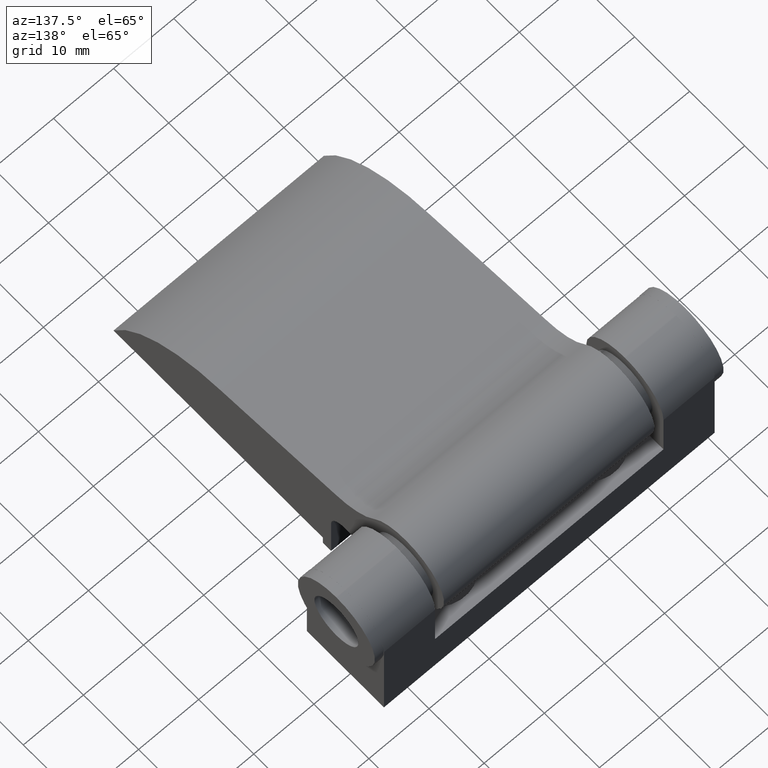
[diagram: clean part render]
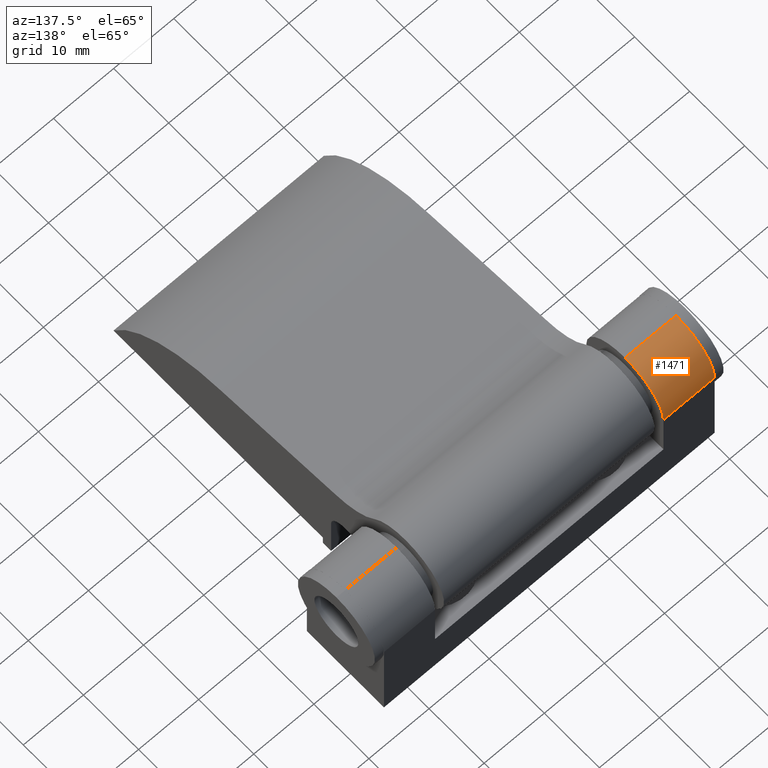
[diagram: same view with one face highlighted and labeled with its STEP entity id]
A machine part, auxiliary view. The second image highlights one B-rep face of the part: STEP entity #1471.
In plain terms, the highlighted cylindrical surface (partial cylindrical patch) has radius 7 mm, axis along (-1, 0, 0).
Its self-contained STEP definition (entity closure, byte-faithful):
#1400=CARTESIAN_POINT('',(-27.500000000000000,9.797174E-016,16.0));
#1401=VERTEX_POINT('',#1400);
#1417=CARTESIAN_POINT('',(-27.500000000000000,-6.999999999999998,23.0));
#1418=VERTEX_POINT('',#1417);
#1426=CARTESIAN_POINT('',(-27.500000000000000,-6.999999999999999,16.0));
#1427=DIRECTION('',(-1.0,0.0,0.0));
#1428=DIRECTION('',(0.0,6.123234E-017,1.0));
#1429=AXIS2_PLACEMENT_3D('',#1426,#1427,#1428);
#1430=CIRCLE('',#1429,7.0);
#1431=EDGE_CURVE('',#1418,#1401,#1430,.T.);
#1440=CARTESIAN_POINT('',(-19.0,-6.999999999999999,16.0));
#1441=DIRECTION('',(-1.0,0.0,0.0));
#1442=DIRECTION('',(0.0,6.123234E-017,1.0));
#1443=AXIS2_PLACEMENT_3D('',#1440,#1441,#1442);
#1444=CYLINDRICAL_SURFACE('',#1443,7.0);
#1445=CARTESIAN_POINT('',(-19.0,-6.999999999999998,23.0));
#1446=VERTEX_POINT('',#1445);
#1447=CARTESIAN_POINT('',(-19.0,9.797174E-016,16.0));
#1448=VERTEX_POINT('',#1447);
#1449=CARTESIAN_POINT('',(-19.0,-6.999999999999999,16.0));
#1450=DIRECTION('',(-1.0,0.0,0.0));
#1451=DIRECTION('',(0.0,6.123234E-017,1.0));
#1452=AXIS2_PLACEMENT_3D('',#1449,#1450,#1451);
#1453=CIRCLE('',#1452,7.0);
#1454=EDGE_CURVE('',#1446,#1448,#1453,.T.);
#1455=ORIENTED_EDGE('',*,*,#1454,.T.);
#1456=CARTESIAN_POINT('',(-19.0,9.797174E-016,16.0));
#1457=DIRECTION('',(-1.0,0.0,0.0));
#1458=VECTOR('',#1457,8.500000000000000);
#1459=LINE('',#1456,#1458);
#1460=EDGE_CURVE('',#1448,#1401,#1459,.T.);
#1461=ORIENTED_EDGE('',*,*,#1460,.T.);
#1462=ORIENTED_EDGE('',*,*,#1431,.F.);
#1463=CARTESIAN_POINT('',(-19.0,-6.999999999999998,23.0));
#1464=DIRECTION('',(-1.0,0.0,0.0));
#1465=VECTOR('',#1464,8.500000000000000);
#1466=LINE('',#1463,#1465);
#1467=EDGE_CURVE('',#1446,#1418,#1466,.T.);
#1468=ORIENTED_EDGE('',*,*,#1467,.F.);
#1469=EDGE_LOOP('',(#1455,#1461,#1462,#1468));
#1470=FACE_OUTER_BOUND('',#1469,.T.);
#1471=ADVANCED_FACE('',(#1470),#1444,.T.);